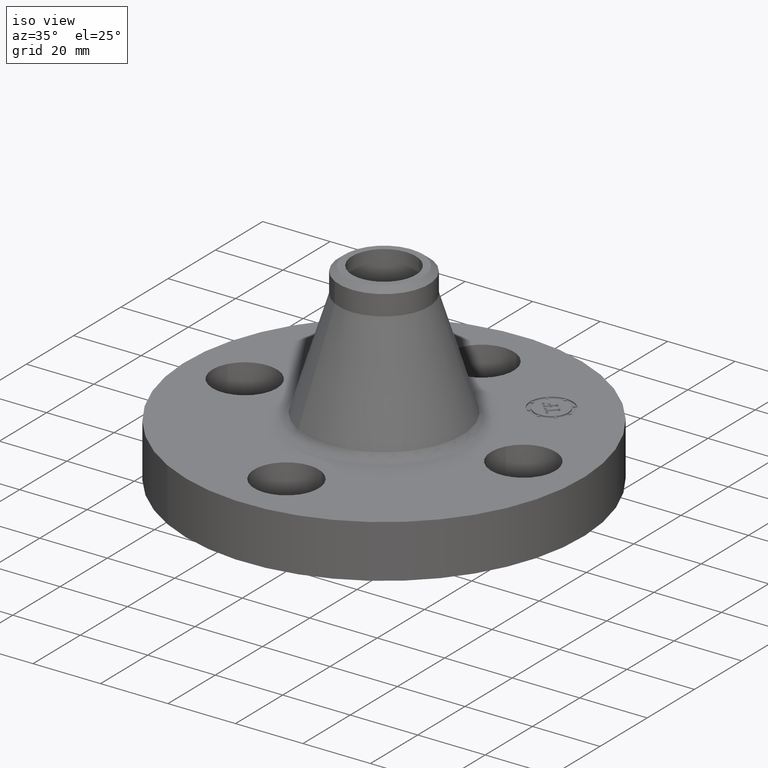
[diagram: clean part render]
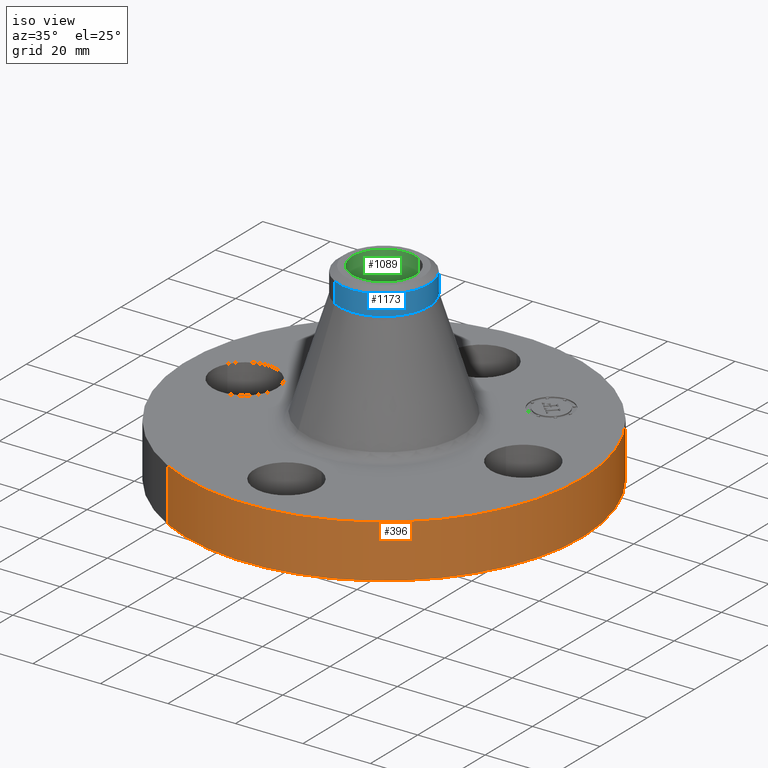
[diagram: same view with three faces highlighted in distinct colors, each labeled with its STEP entity id]
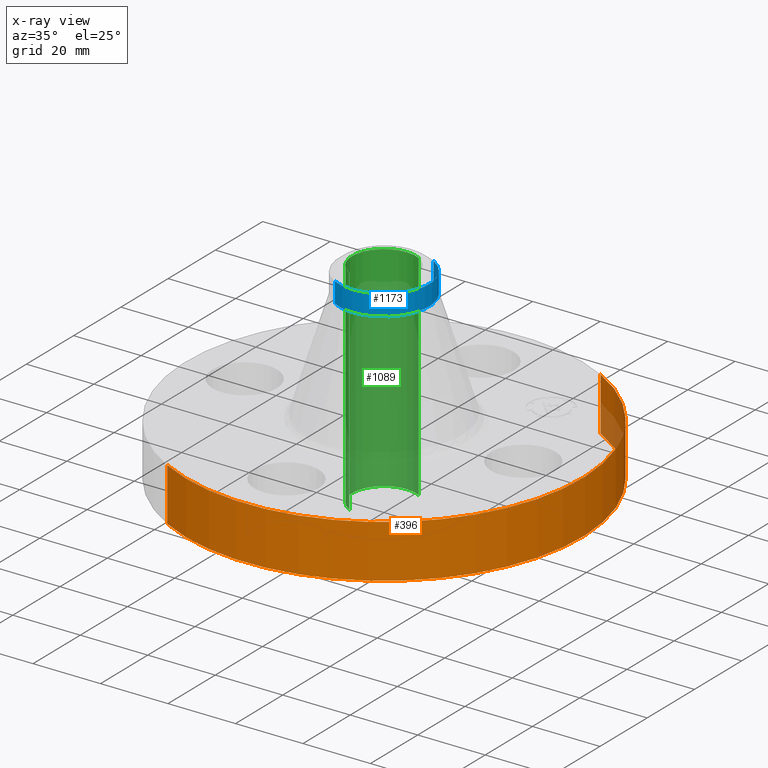
[diagram: x-ray of the same camera — body ghosted, the three highlighted faces saturated]
A machine part, iso view with three faces highlighted in distinct colors.
The next image is the same camera in x-ray (body ghosted, the three faces saturated) — at least one of them is partly hidden behind the body in this view.
Their STEP definitions:

[orange] entity #396 — the highlighted cylindrical surface (partial cylindrical patch) has radius 58.674 mm, axis along (0, 0, -1).
#140=AXIS2_PLACEMENT_3D('Circle Axis2P3D',#138,#139,$) ;
#238=AXIS2_PLACEMENT_3D('Circle Axis2P3D',#236,#237,$) ;
#388=AXIS2_PLACEMENT_3D('Cylinder Axis2P3D',#385,#386,#387) ;
#133=CARTESIAN_POINT('Vertex',(-1.10747299418,-2.02721571797,-1.46668329275E-011)) ;
#135=CARTESIAN_POINT('Vertex',(1.10747299418,2.02721571798,-1.46668329275E-011)) ;
#138=CARTESIAN_POINT('Axis2P3D Location',(1.28113093187E-011,-2.18922692747E-011,0.)) ;
#236=CARTESIAN_POINT('Axis2P3D Location',(-3.08543392061E-011,3.97540268421E-012,0.620000000002)) ;
#240=CARTESIAN_POINT('Vertex',(1.10747299418,2.02721571798,0.619999999972)) ;
#242=CARTESIAN_POINT('Vertex',(-1.10747299418,-2.02721571798,0.619999999972)) ;
#361=CARTESIAN_POINT('Line Origine',(-1.10747299418,-2.02721571798,0.309999999979)) ;
#366=CARTESIAN_POINT('Line Origine',(1.10747299418,2.02721571798,0.309999999979)) ;
#385=CARTESIAN_POINT('Axis2P3D Location',(0.,0.,1.)) ;
#139=DIRECTION('Axis2P3D Direction',(0.,0.,-0.0393700787402)) ;
#237=DIRECTION('Axis2P3D Direction',(0.,0.,-0.0393700787402)) ;
#362=DIRECTION('Vector Direction',(0.,0.,-0.0393700787402)) ;
#367=DIRECTION('Vector Direction',(0.,0.,-0.0393700787402)) ;
#386=DIRECTION('Axis2P3D Direction',(0.,0.,-0.0393700787402)) ;
#387=DIRECTION('Axis2P3D XDirection',(0.0188750212049,0.0345504945626,0.)) ;
#363=VECTOR('Line Direction',#362,0.0393700787402) ;
#368=VECTOR('Line Direction',#367,0.0393700787402) ;
#391=ORIENTED_EDGE('',*,*,#142,.F.) ;
#392=ORIENTED_EDGE('',*,*,#370,.T.) ;
#393=ORIENTED_EDGE('',*,*,#244,.T.) ;
#394=ORIENTED_EDGE('',*,*,#365,.F.) ;
#396=ADVANCED_FACE('PartBody',(#395),#389,.T.) ;
#141=CIRCLE('generated circle',#140,2.31000000001) ;
#239=CIRCLE('generated circle',#238,2.31000000004) ;
#389=CYLINDRICAL_SURFACE('generated cylinder',#388,2.31000000001) ;
#142=EDGE_CURVE('',#136,#134,#141,.T.) ;
#244=EDGE_CURVE('',#241,#243,#239,.T.) ;
#365=EDGE_CURVE('',#134,#243,#364,.F.) ;
#370=EDGE_CURVE('',#136,#241,#369,.F.) ;
#390=EDGE_LOOP('',(#391,#392,#393,#394)) ;
#395=FACE_OUTER_BOUND('',#390,.T.) ;
#364=LINE('Line',#361,#363) ;
#369=LINE('Line',#366,#368) ;
#134=VERTEX_POINT('',#133) ;
#136=VERTEX_POINT('',#135) ;
#241=VERTEX_POINT('',#240) ;
#243=VERTEX_POINT('',#242) ;

[blue] entity #1173 — the highlighted cylindrical surface (partial cylindrical patch) has radius 13.335 mm, axis along (-0, 0, -1).
#827=AXIS2_PLACEMENT_3D('Circle Axis2P3D',#825,#826,$) ;
#1146=AXIS2_PLACEMENT_3D('Cylinder Axis2P3D',#1143,#1144,#1145) ;
#1163=AXIS2_PLACEMENT_3D('Circle Axis2P3D',#1161,#1162,$) ;
#791=CARTESIAN_POINT('Vertex',(-0.251698407768,-0.460730844994,1.95603061929)) ;
#798=CARTESIAN_POINT('Vertex',(0.251698407768,0.460730844994,1.95603061929)) ;
#825=CARTESIAN_POINT('Axis2P3D Location',(0.,0.,1.95603061929)) ;
#1102=CARTESIAN_POINT('Line Origine',(0.251698407768,0.460730844994,2.0741408555)) ;
#1106=CARTESIAN_POINT('Vertex',(0.251698407768,0.460730844994,2.19225109172)) ;
#1109=CARTESIAN_POINT('Line Origine',(-0.251698407768,-0.460730844994,2.0741408555)) ;
#1113=CARTESIAN_POINT('Vertex',(-0.251698407768,-0.460730844994,2.19225109172)) ;
#1143=CARTESIAN_POINT('Axis2P3D Location',(0.,0.,1.)) ;
#1149=CARTESIAN_POINT('Control Point',(0.251698407768,0.460730844994,2.19225109173)) ;
#1150=CARTESIAN_POINT('Control Point',(0.35036818706,0.406827298894,2.19225109173)) ;
#1151=CARTESIAN_POINT('Control Point',(0.434608036561,0.326509943487,2.19225109173)) ;
#1152=CARTESIAN_POINT('Control Point',(0.494901624698,0.224867228628,2.19225109173)) ;
#1153=CARTESIAN_POINT('Control Point',(0.555098375306,-1.321296901E-013,2.19225109173)) ;
#1154=CARTESIAN_POINT('Control Point',(0.494901624698,-0.224867228628,2.19225109172)) ;
#1155=CARTESIAN_POINT('Control Point',(0.434608036561,-0.326509943487,2.19225109172)) ;
#1156=CARTESIAN_POINT('Control Point',(0.35036818706,-0.406827298895,2.19225109172)) ;
#1157=CARTESIAN_POINT('Control Point',(0.251698407768,-0.460730844994,2.19225109172)) ;
#1158=CARTESIAN_POINT('Vertex',(0.251698407769,-0.460730844996,2.19225109173)) ;
#1161=CARTESIAN_POINT('Axis2P3D Location',(0.,0.,2.19225109172)) ;
#826=DIRECTION('Axis2P3D Direction',(-0.,0.,-0.0393700787402)) ;
#1103=DIRECTION('Vector Direction',(0.,0.,-0.0393700787402)) ;
#1110=DIRECTION('Vector Direction',(0.,0.,-0.0393700787402)) ;
#1144=DIRECTION('Axis2P3D Direction',(-0.,0.,-0.0393700787402)) ;
#1145=DIRECTION('Axis2P3D XDirection',(0.0188750212049,0.0345504945626,0.)) ;
#1162=DIRECTION('Axis2P3D Direction',(-0.,0.,-0.0393700787402)) ;
#1104=VECTOR('Line Direction',#1103,0.0393700787402) ;
#1111=VECTOR('Line Direction',#1110,0.0393700787402) ;
#1167=ORIENTED_EDGE('',*,*,#1115,.F.) ;
#1168=ORIENTED_EDGE('',*,*,#829,.F.) ;
#1169=ORIENTED_EDGE('',*,*,#1108,.T.) ;
#1170=ORIENTED_EDGE('',*,*,#1160,.F.) ;
#1171=ORIENTED_EDGE('',*,*,#1165,.T.) ;
#1173=ADVANCED_FACE('PartBody',(#1172),#1147,.T.) ;
#1148=B_SPLINE_CURVE_WITH_KNOTS('',5,(#1149,#1150,#1151,#1152,#1153,#1154,#1155,#1156,#1157),.UNSPECIFIED.,.F.,.U.,(6,3,6),(-14.2790690179,0.,14.2790690179),.UNSPECIFIED.) ;
#828=CIRCLE('generated circle',#827,0.525000000002) ;
#1164=CIRCLE('generated circle',#1163,0.525000000002) ;
#1147=CYLINDRICAL_SURFACE('generated cylinder',#1146,0.525000000002) ;
#829=EDGE_CURVE('',#799,#792,#828,.T.) ;
#1108=EDGE_CURVE('',#799,#1107,#1105,.F.) ;
#1115=EDGE_CURVE('',#792,#1114,#1112,.F.) ;
#1160=EDGE_CURVE('',#1159,#1107,#1148,.F.) ;
#1165=EDGE_CURVE('',#1159,#1114,#1164,.T.) ;
#1166=EDGE_LOOP('',(#1167,#1168,#1169,#1170,#1171)) ;
#1172=FACE_OUTER_BOUND('',#1166,.T.) ;
#1105=LINE('Line',#1102,#1104) ;
#1112=LINE('Line',#1109,#1111) ;
#792=VERTEX_POINT('',#791) ;
#799=VERTEX_POINT('',#798) ;
#1107=VERTEX_POINT('',#1106) ;
#1114=VERTEX_POINT('',#1113) ;
#1159=VERTEX_POINT('',#1158) ;

[green] entity #1089 — the highlighted cylindrical surface (partial cylindrical patch) has radius 9.4234 mm, axis along (-0, 0, -1).
#767=AXIS2_PLACEMENT_3D('Circle Axis2P3D',#765,#766,$) ;
#1076=AXIS2_PLACEMENT_3D('Cylinder Axis2P3D',#1073,#1074,#1075) ;
#1080=AXIS2_PLACEMENT_3D('Circle Axis2P3D',#1078,#1079,$) ;
#760=CARTESIAN_POINT('Vertex',(0.177866874823,0.325583130462,-0.250000000001)) ;
#762=CARTESIAN_POINT('Vertex',(-0.177866874823,-0.325583130462,-0.25)) ;
#765=CARTESIAN_POINT('Axis2P3D Location',(1.28117638982E-011,-3.23401148381E-011,-0.250000000001)) ;
#1044=CARTESIAN_POINT('Vertex',(0.177866874823,0.325583130462,2.25)) ;
#1046=CARTESIAN_POINT('Vertex',(-0.17786687482,-0.325583130462,2.25000000001)) ;
#1049=CARTESIAN_POINT('Line Origine',(0.177866874823,0.325583130462,1.)) ;
#1054=CARTESIAN_POINT('Line Origine',(-0.177866874823,-0.325583130462,1.)) ;
#1073=CARTESIAN_POINT('Axis2P3D Location',(0.,0.,1.)) ;
#1078=CARTESIAN_POINT('Axis2P3D Location',(0.,0.,2.25)) ;
#766=DIRECTION('Axis2P3D Direction',(0.,0.,-0.0393700787402)) ;
#1050=DIRECTION('Vector Direction',(0.,0.,-0.0393700787402)) ;
#1055=DIRECTION('Vector Direction',(0.,0.,-0.0393700787402)) ;
#1074=DIRECTION('Axis2P3D Direction',(-0.,0.,-0.0393700787402)) ;
#1075=DIRECTION('Axis2P3D XDirection',(-0.0188750212049,-0.0345504945626,0.)) ;
#1079=DIRECTION('Axis2P3D Direction',(-0.,0.,-0.0393700787402)) ;
#1051=VECTOR('Line Direction',#1050,0.0393700787402) ;
#1056=VECTOR('Line Direction',#1055,0.0393700787402) ;
#1084=ORIENTED_EDGE('',*,*,#1082,.F.) ;
#1085=ORIENTED_EDGE('',*,*,#1058,.T.) ;
#1086=ORIENTED_EDGE('',*,*,#769,.T.) ;
#1087=ORIENTED_EDGE('',*,*,#1053,.F.) ;
#1089=ADVANCED_FACE('PartBody',(#1088),#1077,.F.) ;
#768=CIRCLE('generated circle',#767,0.371000000003) ;
#1081=CIRCLE('generated circle',#1080,0.371000000001) ;
#1077=CYLINDRICAL_SURFACE('generated cylinder',#1076,0.371000000001) ;
#769=EDGE_CURVE('',#763,#761,#768,.T.) ;
#1053=EDGE_CURVE('',#1045,#761,#1052,.T.) ;
#1058=EDGE_CURVE('',#1047,#763,#1057,.T.) ;
#1082=EDGE_CURVE('',#1047,#1045,#1081,.T.) ;
#1083=EDGE_LOOP('',(#1084,#1085,#1086,#1087)) ;
#1088=FACE_OUTER_BOUND('',#1083,.T.) ;
#1052=LINE('Line',#1049,#1051) ;
#1057=LINE('Line',#1054,#1056) ;
#761=VERTEX_POINT('',#760) ;
#763=VERTEX_POINT('',#762) ;
#1045=VERTEX_POINT('',#1044) ;
#1047=VERTEX_POINT('',#1046) ;